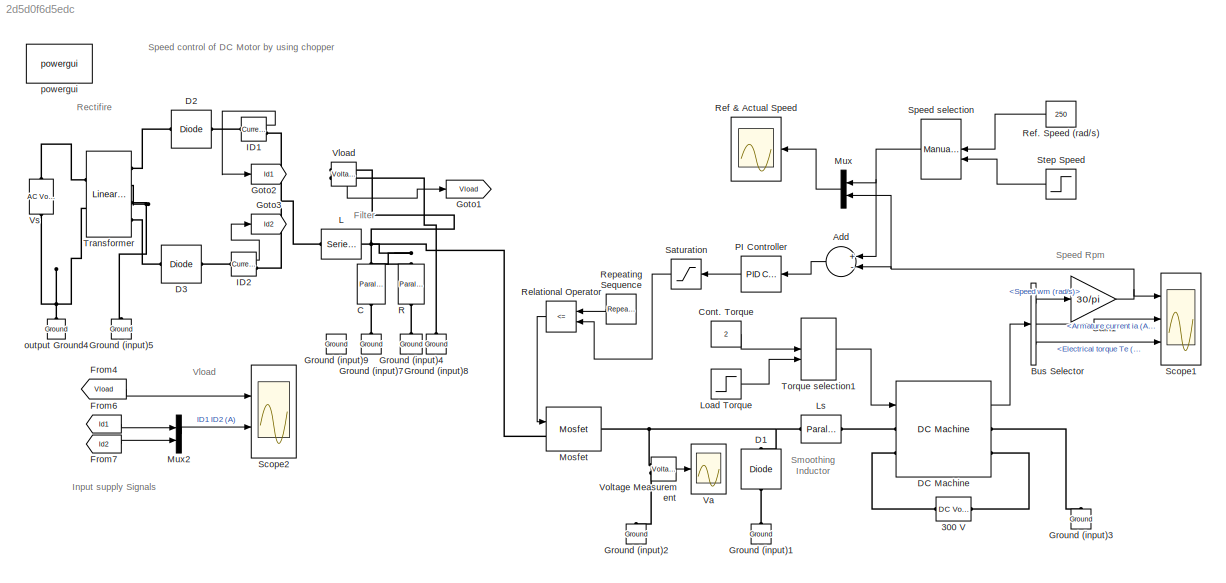
MODEL slx_2d5d0f6d5edc
KIND model
CONFIG AbsTol = auto
CONFIG FixedStep = auto
CONFIG InitFcn = fs=1000;
CONFIG MaxStep = 10e-6
CONFIG MinStep = auto
CONFIG RelTol = 1e-3
CONFIG SampleTimeConstraint = Unconstrained
CONFIG Solver = ode23tb
CONFIG SolverMode = Auto
CONFIG SolverName = ode23tb
CONFIG StartTime = 0.0
CONFIG StopTime = 2
BLOCK [Reference] 300 V  REF=powerlib/Electrical
Sources/DC Voltage Source
  Amplitude = 300
  AttributesFormatString = \n
  Description = source block
  Measurements = None
  Ports = [0, 0, 0, 0, 0, 1, 1]
  SourceBlock = powerlib/Electrical\nSources/DC Voltage Source
  SourceType = DC Voltage Source
BLOCK [Sum] Add
  InputSameDT = off
  Inputs = +-
  OutDataTypeStr = Inherit: Inherit via internal rule
  Ports = [2, 1]
  SaturateOnIntegerOverflow = off
BLOCK [BusSelector] Bus Selector
  OutputSignals = Speed wm (rad/s),Armature current ia (A),Electrical torque Te (n m)
  Ports = [1, 3]
BLOCK [Reference] C  REF=powerlib/Elements/Parallel RLC Branch
  AttributesFormatString = \n
  BranchType = C
  Capacitance = 500e-06
  Inductance = 1.0
  InitialCurrent = 0
  InitialVoltage = 0
  LConnTagsString = a
  Measurements = None
  Ports = [0, 0, 0, 0, 0, 1, 1]
  RConnTagsString = __new0
  Resistance = 5
  SetiL0 = off
  Setx0 = off
  SourceBlock = powerlib/Elements/Parallel RLC Branch
  SourceType = Parallel RLC Branch
BLOCK [Constant] Cont. Torque
  Value = 2
BLOCK [Reference] D1  REF=powerlib/Power
Electronics/Diode
  AttributesFormatString = \n
  Cs = 0.1e-6
  IC = 0
  Lon = 0
  Measurements = off
  Ports = [0, 0, 0, 0, 0, 1, 1]
  Ron = 0.05
  Rs = Inf
  SourceBlock = powerlib/Power\nElectronics/Diode
  SourceType = Diode
  UseSnubber = off
  Vf = 0.7
BLOCK [Reference] D2  REF=powerlib/Power
Electronics/Diode
  AttributesFormatString = \n
  Cs = inf
  IC = 0
  Lon = 0
  Measurements = off
  Ports = [0, 0, 0, 0, 0, 1, 1]
  Ron = 1e-3
  Rs = 1e6
  SourceBlock = powerlib/Power\nElectronics/Diode
  SourceType = Diode
  UseSnubber = off
  Vf = 0.7
BLOCK [Reference] D3  REF=powerlib/Power
Electronics/Diode
  AttributesFormatString = \n
  Cs = inf
  IC = 0
  Lon = 0
  Measurements = off
  Ports = [0, 0, 0, 0, 0, 1, 1]
  Ron = 1e-3
  Rs = 1e6
  SourceBlock = powerlib/Power\nElectronics/Diode
  SourceType = Diode
  UseSnubber = off
  Vf = 0.7
BLOCK [Reference] DC Machine  REF=powerlib/Machines/DC Machine
  AttributesFormatString = \n
  Bm = 0.002953
  FieldType = Wound
  Ifinit = 1
  J = 0.02215
  Ke = 1.8
  Kt = 1.8
  Laf = 0.9483
  MachineConstant = Torque constant (N.m/A)
  MeasurementBus = off
  MechanicalLoad = Torque TL
  Ports = [1, 1, 0, 0, 0, 2, 2]
  PresetModel = 01: 5HP 240V 1750RPM Field:300V
  RLa = [2.581 0.028]
  RLf = [281.3 156]
  ShowDetailedParameters = on
  SourceBlock = powerlib/Machines/DC Machine
  SourceType = DC machine
  Tf = 0.5161
  TsBlock = -1
  TsPowergui = 0
  w0 = 1
BLOCK [From] From4
  CloseFcn = tagdialog Close
  GotoTag = Vload
BLOCK [From] From6
  CloseFcn = tagdialog Close
  GotoTag = Id1
BLOCK [From] From7
  CloseFcn = tagdialog Close
  GotoTag = Id2
BLOCK [Gain] Gain1
  Gain = 30/pi
  OutDataTypeStr = Inherit: Inherit via internal rule
  ParamDataTypeStr = Inherit: Inherit via internal rule
  SaturateOnIntegerOverflow = off
BLOCK [Goto] Goto1
  GotoTag = Vload
BLOCK [Goto] Goto2
  GotoTag = Id1
BLOCK [Goto] Goto3
  GotoTag = Id2
BLOCK [Reference] Ground (input)1  REF=powerlib/Elements/Ground
  AttributesFormatString = \n
  LConnTagsString = a
  Ports = [0, 0, 0, 0, 0, 1]
  SourceBlock = powerlib/Elements/Ground
  SourceType = Ground
BLOCK [Reference] Ground (input)2  REF=powerlib/Elements/Ground
  AttributesFormatString = \n
  LConnTagsString = a
  Ports = [0, 0, 0, 0, 0, 1]
  SourceBlock = powerlib/Elements/Ground
  SourceType = Ground
BLOCK [Reference] Ground (input)3  REF=powerlib/Elements/Ground
  AttributesFormatString = \n
  LConnTagsString = a
  Ports = [0, 0, 0, 0, 0, 1]
  SourceBlock = powerlib/Elements/Ground
  SourceType = Ground
BLOCK [Reference] Ground (input)4  REF=powerlib/Elements/Ground
  AttributesFormatString = \n
  LConnTagsString = a
  Ports = [0, 0, 0, 0, 0, 1]
  SourceBlock = powerlib/Elements/Ground
  SourceType = Ground
BLOCK [Reference] Ground (input)5  REF=powerlib/Elements/Ground
  AttributesFormatString = \n
  LConnTagsString = a
  Ports = [0, 0, 0, 0, 0, 1]
  SourceBlock = powerlib/Elements/Ground
  SourceType = Ground
BLOCK [Reference] Ground (input)7  REF=powerlib/Elements/Ground
  AttributesFormatString = \n
  LConnTagsString = a
  Ports = [0, 0, 0, 0, 0, 1]
  SourceBlock = powerlib/Elements/Ground
  SourceType = Ground
BLOCK [Reference] Ground (input)8  REF=powerlib/Elements/Ground
  AttributesFormatString = \n
  LConnTagsString = a
  Ports = [0, 0, 0, 0, 0, 1]
  SourceBlock = powerlib/Elements/Ground
  SourceType = Ground
BLOCK [Reference] Ground (input)9  REF=powerlib/Elements/Ground
  AttributesFormatString = \n
  LConnTagsString = a
  Ports = [0, 0, 0, 0, 0, 1]
  SourceBlock = powerlib/Elements/Ground
  SourceType = Ground
BLOCK [Reference] ID1  REF=powerlib/Measurements/Current Measurement
  OutputType = Complex
  PSBequivalent = 0
  PhasorSimulation = off
  Ports = [0, 1, 0, 0, 0, 1, 1]
  SourceBlock = powerlib/Measurements/Current Measurement
  SourceType = Current Measurement
BLOCK [Reference] ID2  REF=powerlib/Measurements/Current Measurement
  OutputType = Complex
  PSBequivalent = 0
  PhasorSimulation = off
  Ports = [0, 1, 0, 0, 0, 1, 1]
  SourceBlock = powerlib/Measurements/Current Measurement
  SourceType = Current Measurement
BLOCK [Reference] L  REF=powerlib/Elements/Series RLC Branch
  AttributesFormatString = \n
  BranchType = L
  Capacitance = 1.0
  Inductance = 20e-03
  InitialCurrent = 0
  InitialVoltage = 0
  LConnTagsString = __new0
  Measurements = None
  Ports = [0, 0, 0, 0, 0, 1, 1]
  RConnTagsString = __new0
  Resistance = 1.0
  SetiL0 = off
  Setx0 = off
  SourceBlock = powerlib/Elements/Series RLC Branch
  SourceType = Series RLC Branch
BLOCK [Step] Load Torque
  After = 6
  Before = 3
  SampleTime = 0
  Time = 1.2
BLOCK [Reference] Ls  REF=powerlib/Elements/Parallel RLC Branch
  AttributesFormatString = \n
  BranchType = L
  Capacitance = 1.0
  Inductance = 10e-03
  InitialCurrent = 0
  InitialVoltage = 0
  LConnTagsString = a
  Measurements = None
  Ports = [0, 0, 0, 0, 0, 1, 1]
  RConnTagsString = __new0
  Resistance = 1.0
  SetiL0 = off
  Setx0 = off
  SourceBlock = powerlib/Elements/Parallel RLC Branch
  SourceType = Parallel RLC Branch
BLOCK [Reference] Mosfet  REF=powerlib/Power
Electronics/Mosfet
  Cs = inf
  IC = 0
  Lon = 0
  Measurements = off
  Ports = [1, 0, 0, 0, 0, 1, 1]
  Rd = 0.01
  Ron = 0.1
  Rs = 1e5
  SourceBlock = powerlib/Power\nElectronics/Mosfet
  SourceType = Mosfet
  Vfd = 0
BLOCK [Mux] Mux
  DisplayOption = bar
  Inputs = 2
  Ports = [2, 1]
BLOCK [Mux] Mux2
  DisplayOption = bar
  Inputs = 2
  Ports = [2, 1]
BLOCK [Reference] PI Controller  REF=simulink/Continuous/PID Controller
  AntiWindupMode = none
  Controller = PI
  ControllerParametersSource = internal
  D = 0.0001
  DGainOutDataTypeStr = Inherit: Inherit via internal rule
  DOutDataTypeStr = Inherit: Inherit via internal rule
  DOutMax = []
  DOutMin = []
  DParamDataTypeStr = Inherit: Inherit via internal rule
  DParamMax = []
  DParamMin = []
  DProdOutDataTypeStr = Inherit: Inherit via internal rule
  DifferentiatorICPrevScaledInput = 0
  DifferentiatorOutDataTypeStr = Inherit: Inherit via internal rule
  DifferentiatorOutMax = []
  DifferentiatorOutMin = []
  ExternalReset = none
  FilterContinuousStateAttributes = ''
  FilterMethod = Forward Euler
  FilterOutDataTypeStr = Inherit: Inherit via internal rule
  FilterOutMax = []
  FilterOutMin = []
  FilterRTWStateStorageClass = Auto
  FilterStateMustResolveToSignalObject = off
  Form = Parallel
  I = 0.02
  IGainOutDataTypeStr = Inherit: Inherit via internal rule
  IOutDataTypeStr = Inherit: Inherit via internal rule
  IOutMax = []
  IOutMin = []
  IParamDataTypeStr = Inherit: Inherit via internal rule
  IParamMax = []
  IParamMin = []
  IProdOutDataTypeStr = Inherit: Inherit via internal rule
  IgnoreLimit = off
  InitialConditionForFilter = 0
  InitialConditionForIntegrator = 0
  InitialConditionSource = internal
  IntegratorContinuousStateAttributes = ''
  IntegratorMethod = Forward Euler
  IntegratorOutDataTypeStr = Inherit: Inherit via internal rule
  IntegratorOutMax = []
  IntegratorOutMin = []
  IntegratorRTWStateStorageClass = Auto
  IntegratorStateMustResolveToSignalObject = off
  Kb = 1
  KbOutDataTypeStr = Inherit: Inherit via internal rule
  KbOutMax = []
  KbOutMin = []
  KbParamDataTypeStr = Inherit: Inherit via internal rule
  KbParamMax = []
  KbParamMin = []
  Kt = 1
  KtOutDataTypeStr = Inherit: Inherit via internal rule
  KtOutMax = []
  KtOutMin = []
  KtParamDataTypeStr = Inherit: Inherit via internal rule
  KtParamMax = []
  KtParamMin = []
  LimitOutput = off
  LinearizeAsGain = off
  LockScale = off
  LowerSaturationLimit = -inf
  N = 100
  NGainOutDataTypeStr = Inherit: Inherit via internal rule
  NOutDataTypeStr = Inherit: Inherit via internal rule
  NOutMax = []
  NOutMin = []
  NParamDataTypeStr = Inherit: Inherit via internal rule
  NParamMax = []
  NParamMin = []
  NProdOutDataTypeStr = Inherit: Inherit via internal rule
  P = 0.001
  PGainOutDataTypeStr = Inherit: Inherit via internal rule
  POutDataTypeStr = Inherit: Inherit via internal rule
  POutMax = []
  POutMin = []
  PParamDataTypeStr = Inherit: Inherit via internal rule
  PParamMax = []
  PParamMin = []
  PProdOutDataTypeStr = Inherit: Inherit via internal rule
  Ports = [1, 1]
  RndMeth = Floor
  SampleTime = -1
  SaturateOnIntegerOverflow = off
  SaturationOutDataTypeStr = Inherit: Same as input
  SaturationOutMax = []
  SaturationOutMin = []
  SourceBlock = simulink/Continuous/PID Controller
  SourceType = PID 1dof
  SumAccumDataTypeStr = Inherit: Inherit via internal rule
  SumDAccumDataTypeStr = Inherit: Inherit via internal rule
  SumDOutDataTypeStr = Inherit: Inherit via internal rule
  SumDOutMax = []
  SumDOutMin = []
  SumI1AccumDataTypeStr = Inherit: Inherit via internal rule
  SumI1OutDataTypeStr = Inherit: Inherit via internal rule
  SumI1OutMax = []
  SumI1OutMin = []
  SumI2AccumDataTypeStr = Inherit: Inherit via internal rule
  SumI2OutDataTypeStr = Inherit: Inherit via internal rule
  SumI2OutMax = []
  SumI2OutMin = []
  SumI3AccumDataTypeStr = Inherit: Inherit via internal rule
  SumI3OutDataTypeStr = Inherit: Inherit via internal rule
  SumI3OutMax = []
  SumI3OutMin = []
  SumOutDataTypeStr = Inherit: Inherit via internal rule
  SumOutMax = []
  SumOutMin = []
  TimeDomain = Continuous-time
  TrackingMode = off
  UpperSaturationLimit = inf
  UseFilter = on
  ZeroCross = on
BLOCK [Reference] R  REF=powerlib/Elements/Parallel RLC Branch
  AttributesFormatString = \n
  BranchType = R
  Capacitance = 200e-06
  Inductance = 1.0
  InitialCurrent = 0
  InitialVoltage = 0
  LConnTagsString = a
  Measurements = None
  Ports = [0, 0, 0, 0, 0, 1, 1]
  RConnTagsString = __new0
  Resistance = 10
  SetiL0 = off
  Setx0 = off
  SourceBlock = powerlib/Elements/Parallel RLC Branch
  SourceType = Parallel RLC Branch
BLOCK [Scope] Ref & Actual Speed
  DataFormat = StructureWithTime
  Floating = off
  MaxDataPoints = 5000000
  NumInputPorts = 1
  Ports = [1]
  SampleTime = 0
  SaveName = ScopeData2
  TimeRange = 2
  YMax = 800
  YMin = 2.5
  ZoomMode = xonly
BLOCK [Constant] Ref. Speed (rad//s)
  Value = 250
BLOCK [RelationalOperator] Relational Operator
  InputSameDT = off
  Operator = <=
  OutDataTypeStr = boolean
  Ports = [2, 1]
BLOCK [Reference] Repeating Sequence  REF=simulink/Sources/Repeating
Sequence
  Ports = [0, 1]
  SourceBlock = simulink/Sources/Repeating\nSequence
  SourceType = Repeating table
  rep_seq_t = [0 1/2000]
  rep_seq_y = [0 0.8]
BLOCK [Saturate] Saturation
  InputPortMap = u0
  LowerLimit = 0
  Ports = [1, 1]
  UpperLimit = 1
BLOCK [Scope] Scope1
  DataFormat = StructureWithTime
  Floating = off
  MaxDataPoints = 5000000
  NumInputPorts = 3
  Ports = [3]
  SampleTime = 0
  SaveName = ScopeData1
  YMax = 800~50~15
  YMin = 110~0~0
  ZoomMode = xonly
BLOCK [Scope] Scope2
  DataFormat = StructureWithTime
  Floating = off
  LegendLocations = 0.9013     0.91045     0.06875    0.028598\n0.87552     0.42147    0.094531    0.050633
  LimitDataPoints = off
  NumInputPorts = 2
  Ports = [2]
  SampleTime = 10e-6
  SaveName = ScopeData5
  SaveToWorkspace = on
  ShowLegends = on
  TimeRange = 0.1
  YMax = 300~50
  YMin = -1~-2.5
  ZoomMode = xonly
BLOCK [ManualSwitch] Speed selection
  CurrentSetting = 0
BLOCK [Step] Step Speed 
  After = 400
  Before = 200
  SampleTime = 0
  Time = .6
BLOCK [ManualSwitch] Torque selection1
  CurrentSetting = 0
BLOCK [Reference] Transformer  REF=powerlib/Elements/Linear Transformer
  DataType = on
  Measurements = None
  NominalPower = [50 50]
  Ports = [0, 0, 0, 0, 0, 2, 4]
  RmLm = [Inf Inf]
  SourceBlock = powerlib/Elements/Linear Transformer
  SourceType = Linear Transformer
  ThreeWindings = on
  UNITS = SI
  winding1 = [250 0 0]
  winding2 = [230 0 0.01]
  winding3 = [230 0 0.01]
BLOCK [Scope] Va
  DataFormat = StructureWithTime
  Floating = off
  MaxDataPoints = 5000000
  NumInputPorts = 1
  Ports = [1]
  SampleTime = 0
  YMax = 500
  YMin = 50
  ZoomMode = xonly
BLOCK [Reference] Vload  REF=powerlib/Measurements/Voltage Measurement
  AttributesFormatString = \n
  OutputType = Magnitude
  PSBequivalent = 0
  PhasorSimulation = off
  Ports = [0, 1, 0, 0, 0, 2]
  SourceBlock = powerlib/Measurements/Voltage Measurement
  SourceType = Voltage Measurement
  Tag = PoWeRsYsTeMmEaSuReMeNt
BLOCK [Reference] Voltage Measurement  REF=powerlib/Measurements/Voltage Measurement
  OutputType = Complex
  PSBequivalent = 0
  PhasorSimulation = off
  Ports = [0, 1, 0, 0, 0, 2]
  SourceBlock = powerlib/Measurements/Voltage Measurement
  SourceType = Voltage Measurement
BLOCK [Reference] Vs  REF=powerlib/Electrical
Sources/AC Voltage Source
  Amplitude = 400
  AttributesFormatString = \n
  Description = source block
  Frequency = 50
  Measurements = None
  Phase = 0
  Ports = [0, 0, 0, 0, 0, 1, 1]
  SampleTime = 0
  SourceBlock = powerlib/Electrical\nSources/AC Voltage Source
  SourceType = AC Voltage Source
BLOCK [Reference] output Ground4  REF=powerlib/Elements/Ground
  AttributesFormatString = \n
  LConnTagsString = a
  Ports = [0, 0, 0, 0, 0, 1]
  SourceBlock = powerlib/Elements/Ground
  SourceType = Ground
BLOCK [Reference] powergui  REF=powerlib/powergui
  DisableRonSwitches = off
  DisableSnubberDevices = off
  DisableVfSwitches = off
  DisplayEquations = off
  DisplayStyle = 1
  EnableUseOfTLC = off
  ErrMax = 1e-4
  Frange = [0:2:500]
  FreqAxis = off
  FunctionMessages = off
  HookPort = off
  Interpol = off
  Iterations = 50
  MaxFrequency = 1000
  Pbase = 100e6
  Ports = []
  Priority = 1
  ResistiveCurrentMeasurement = off
  RestoreLinks = warning
  RmsSteady = 1
  SPID = off
  SampleTime = 50e-6
  ShowGrid = off
  SolverType = Tustin/Backward Euler (TBE)
  SourceBlock = powerlib/powergui
  SourceType = PSB option menu block
  StartTime = 0.0
  SwTol = 0
  Ts = 100
  UnitsV = kV
  UnitsW = MW
  UserDataPersistent = on
  Xlog = on
  Ylog = off
  ZoomFFT = off
  buscounter = 0
  cycles = 1
  display = off
  echomessages = off
  frequency = 60
  frequencyindice = 0
  frequencyindicesteady = 1
  fundamental = 60
  methode = off
  save = off
  structure = 0
  variable = ZData
  x0status = blocks
ANNOTATION (root): I nput supply Signals
ANNOTATION (root): Filter
ANNOTATION (root): Rectifire
ANNOTATION (root): Speed control of DC Motor by using chopper
ANNOTATION (root): Smoothing Inductor
ANNOTATION (root): Speed Rpm
ANNOTATION (root): Vload
LINE Add:1 -> PI Controller:1
LINE Bus Selector:1 -> Gain1:1
LINE Bus Selector:2 -> Scope1:2
LINE Bus Selector:3 -> Scope1:3
LINE Cont. Torque:1 -> Torque selection1:1
LINE DC Machine:1 -> Bus Selector:1
LINE From4:1 -> Scope2:1
LINE From6:1 -> Mux2:1
LINE From7:1 -> Mux2:2
NET Gain1:1 -> Add:2, Mux:2, Scope1:1
LINE ID1:1 -> Goto2:1
LINE ID2:1 -> Goto3:1
LINE Load Torque:1 -> Torque selection1:2
LINE Mux2:1 -> Scope2:2
LINE Mux:1 -> Ref & Actual Speed:1
LINE PI Controller:1 -> Saturation:1
LINE Ref. Speed (rad//s):1 -> Speed selection:1
LINE Relational Operator:1 -> Mosfet:1
LINE Repeating Sequence:1 -> Relational Operator:1
LINE Saturation:1 -> Relational Operator:2
NET Speed selection:1 -> Add:1, Mux:1
LINE Step Speed :1 -> Speed selection:2
LINE Torque selection1:1 -> DC Machine:1
LINE Vload:1 -> Goto1:1
LINE Voltage Measurement:1 -> Va:1
PLINE 300 V:LConn1 -- DC Machine:RConn2
PLINE 300 V:RConn1 -- DC Machine:LConn2
PNET net1: C:LConn1 -- L:RConn1 -- Mosfet:LConn1 -- R:LConn1 -- Vload:LConn1
PLINE C:RConn1 -- Ground (input)7:LConn1
PLINE D1:LConn1 -- Ground (input)1:LConn1
PNET net2: D1:RConn1 -- Ls:LConn1 -- Mosfet:RConn1 -- Voltage Measurement:LConn1
PLINE D2:LConn1 -- Transformer:RConn1
PLINE D2:RConn1 -- ID1:LConn1
PLINE D3:LConn1 -- Transformer:RConn4
PLINE D3:RConn1 -- ID2:LConn1
PLINE DC Machine:LConn1 -- Ls:RConn1
PLINE DC Machine:RConn1 -- Ground (input)3:LConn1
PLINE Ground (input)2:LConn1 -- Voltage Measurement:LConn2
PLINE Ground (input)4:LConn1 -- R:RConn1
PNET net3: Ground (input)5:LConn1 -- Transformer:RConn2 -- Transformer:RConn3
PLINE Ground (input)8:LConn1 -- Vload:LConn2
PNET net4: ID1:RConn1 -- ID2:RConn1 -- L:LConn1
PLINE Transformer:LConn1 -- Vs:RConn1
PNET net5: Transformer:LConn2 -- Vs:LConn1 -- output Ground4:LConn1
note: NET lines group one-source signal fan-out (src -> all destinations, sorted); 1:1 wires keep LINE; PNET lines group multi-terminal physical nets as a canonical sorted terminal list (undirected conserving connections); 2-terminal nets keep the pairwise PLINE form
